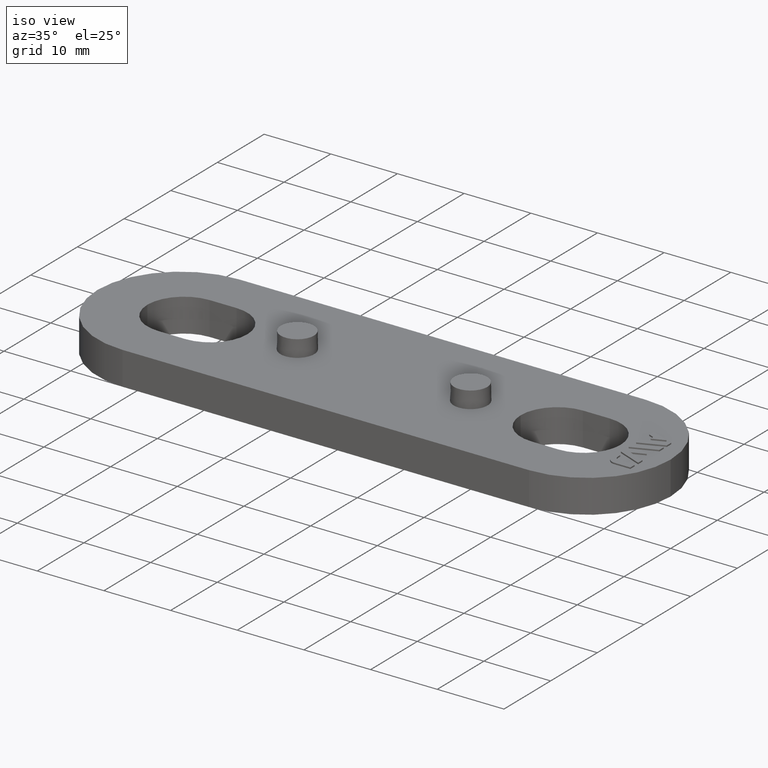
[diagram: clean part render]
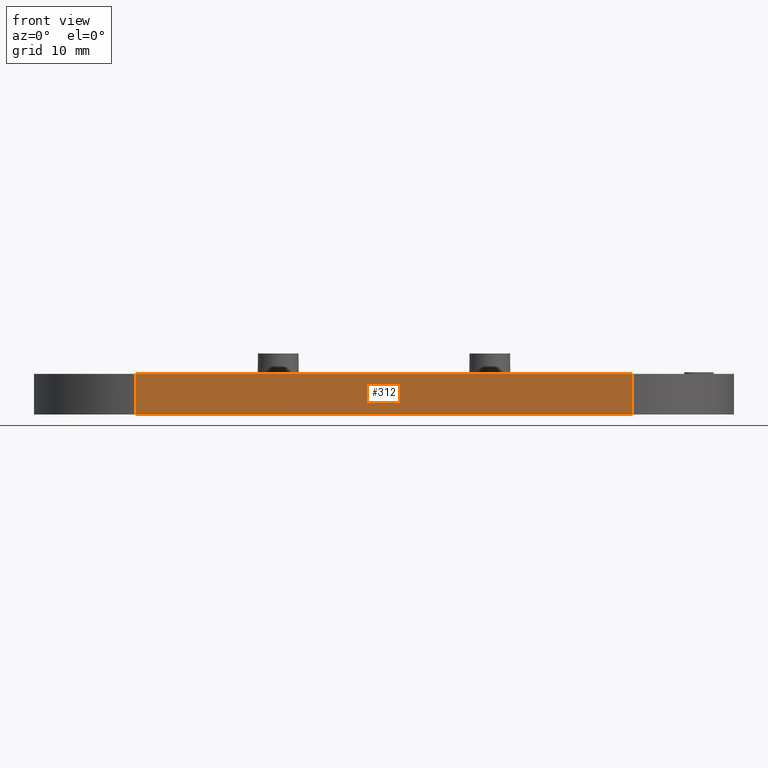
[diagram: tour spotlight — one face highlighted and labeled with its STEP entity id]
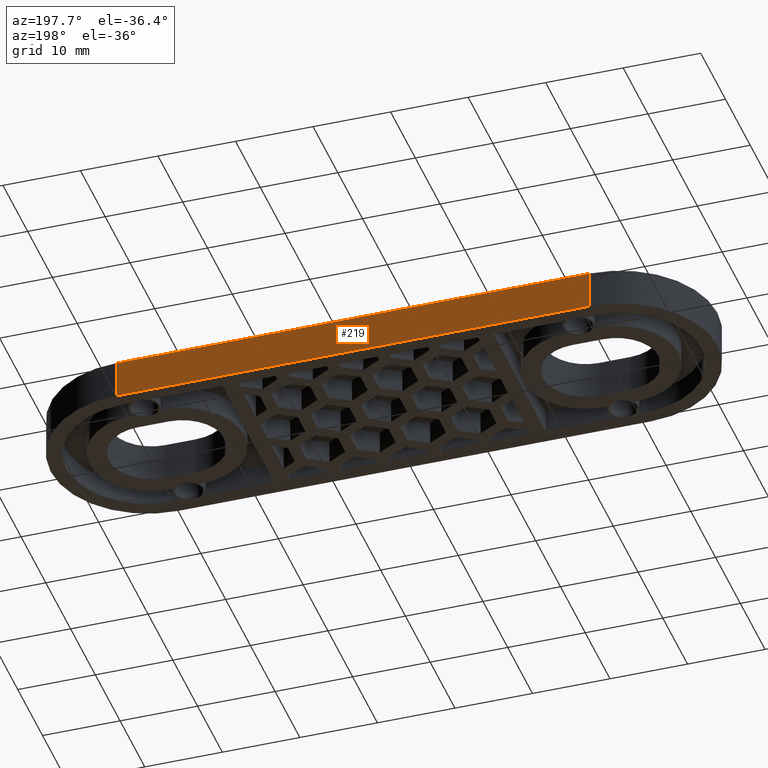
[diagram: tour spotlight — one face highlighted and labeled with its STEP entity id]
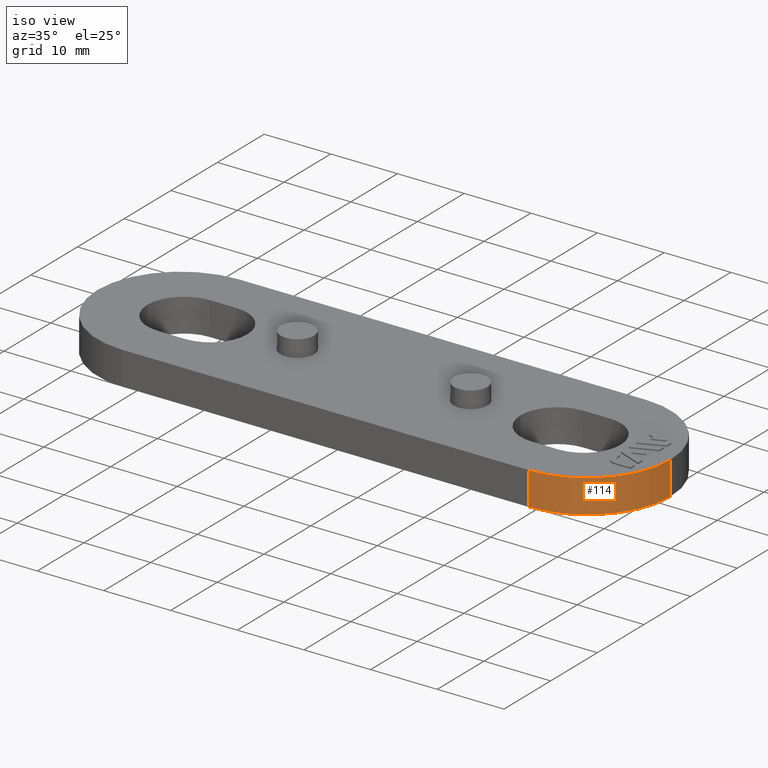
[diagram: tour spotlight — one face highlighted and labeled with its STEP entity id]
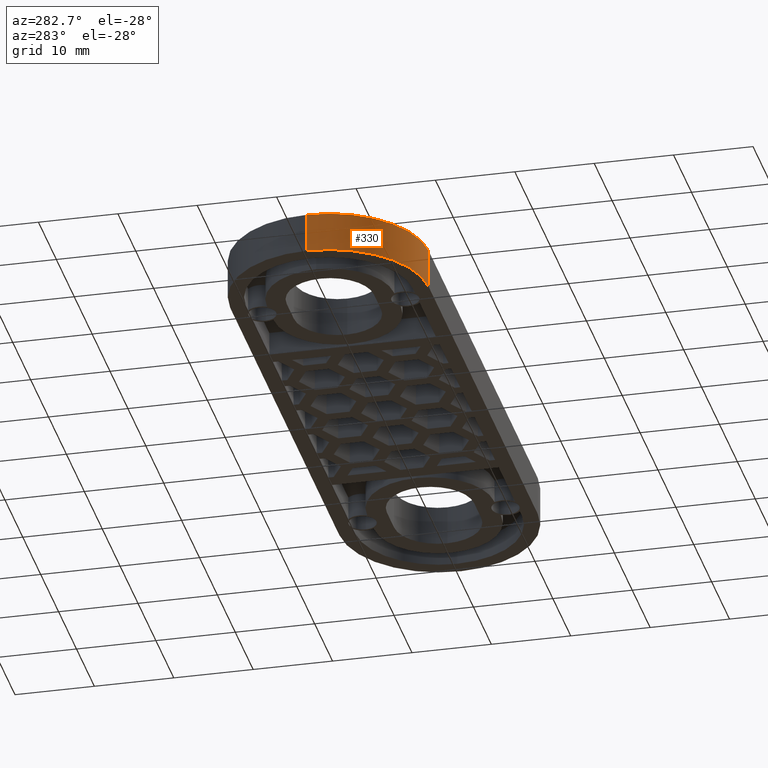
[diagram: tour spotlight — one face highlighted and labeled with its STEP entity id]
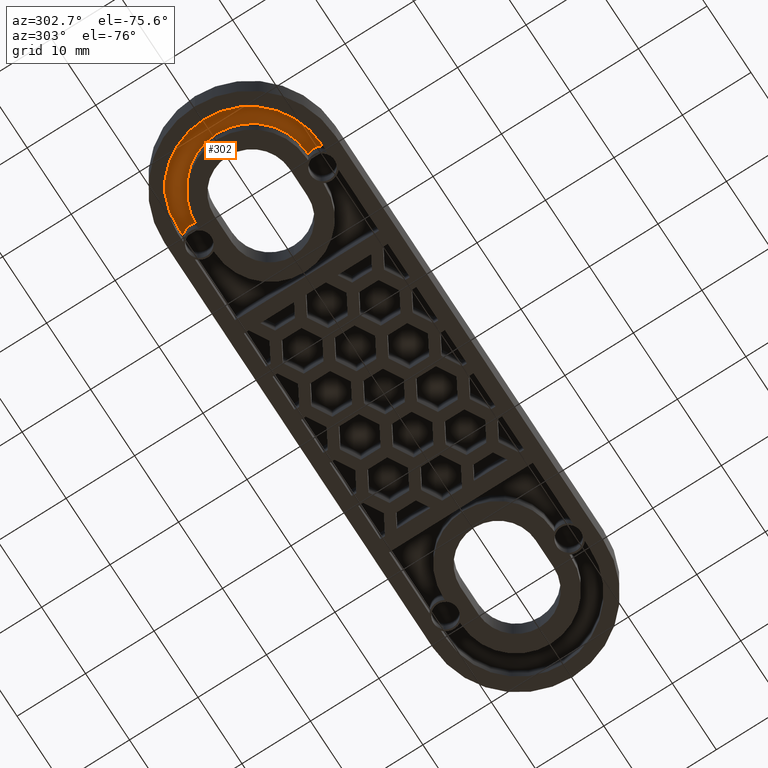
[diagram: tour spotlight — one face highlighted and labeled with its STEP entity id]
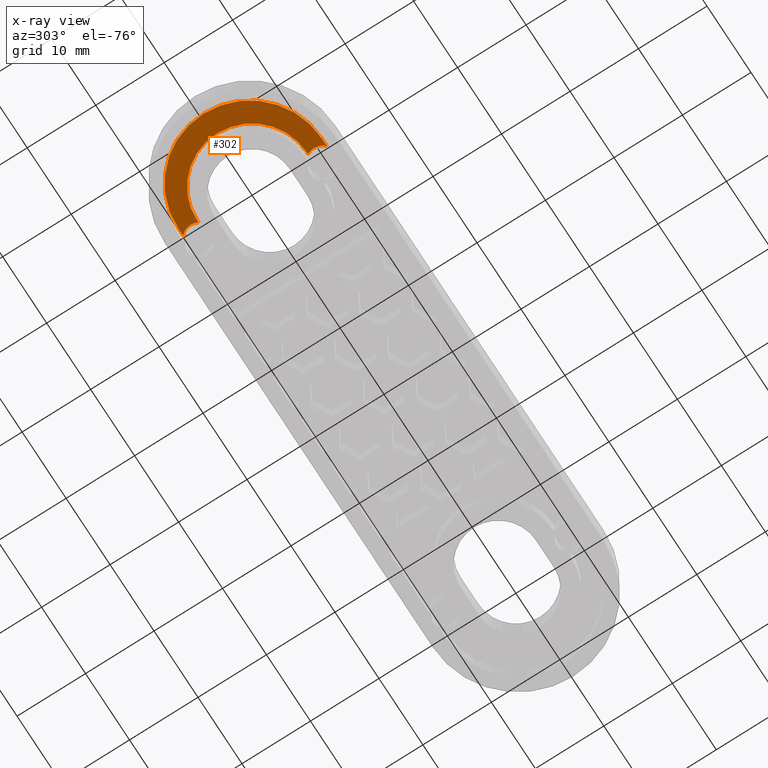
[diagram: x-ray of the same camera — body ghosted, this tour face saturated]
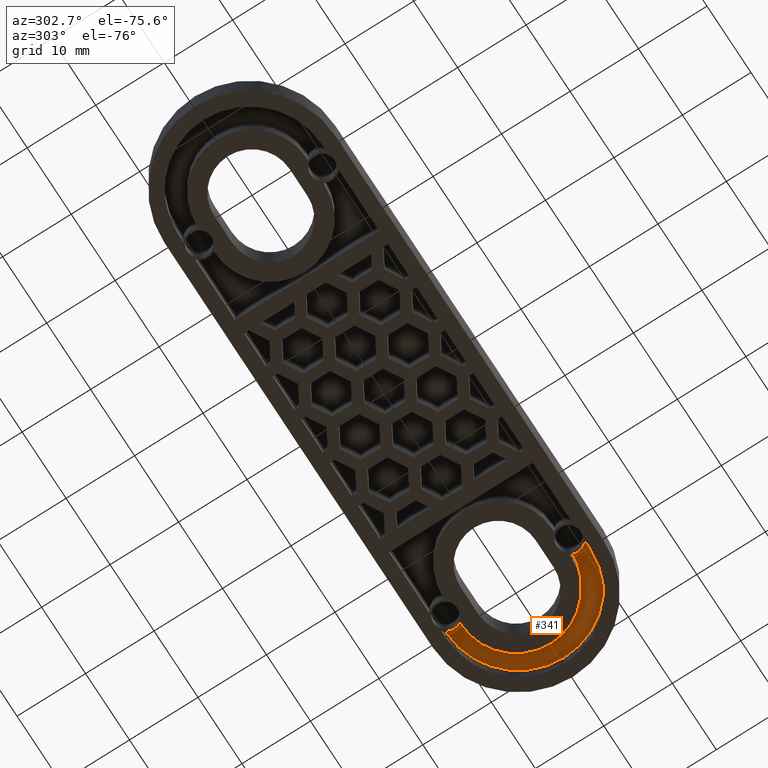
[diagram: tour spotlight — one face highlighted and labeled with its STEP entity id]
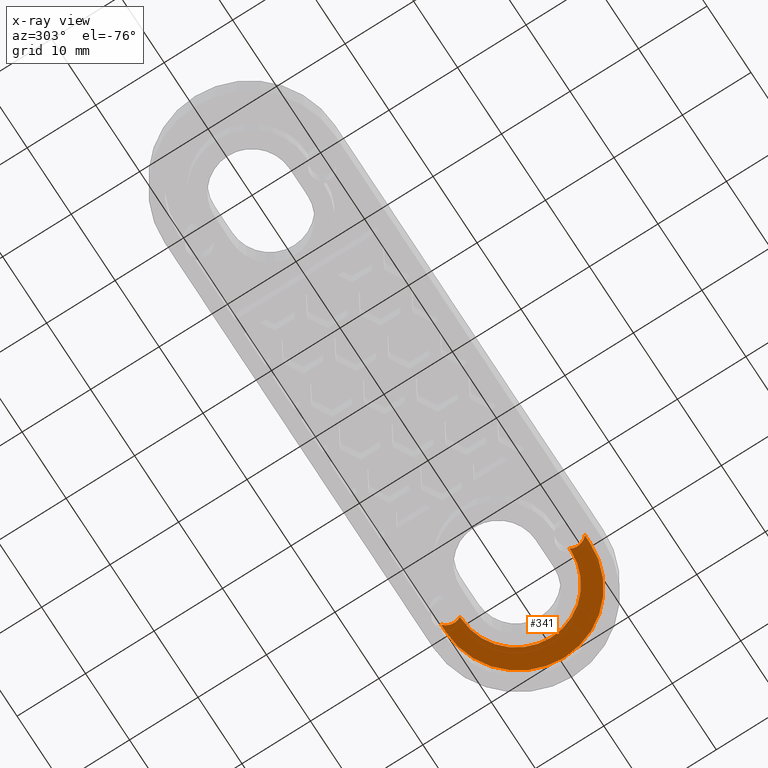
[diagram: x-ray of the same camera — body ghosted, this tour face saturated]
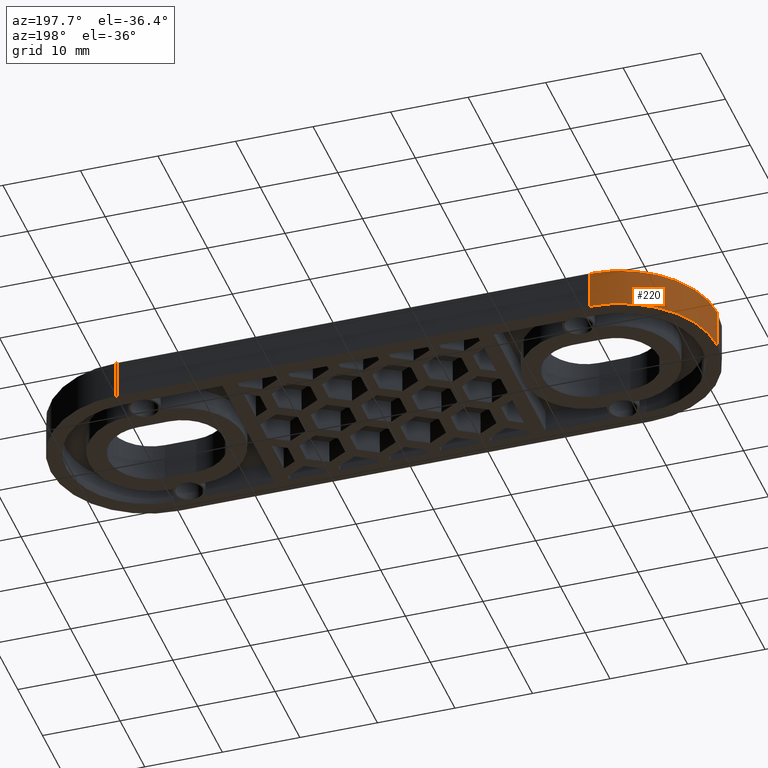
[diagram: tour spotlight — one face highlighted and labeled with its STEP entity id]
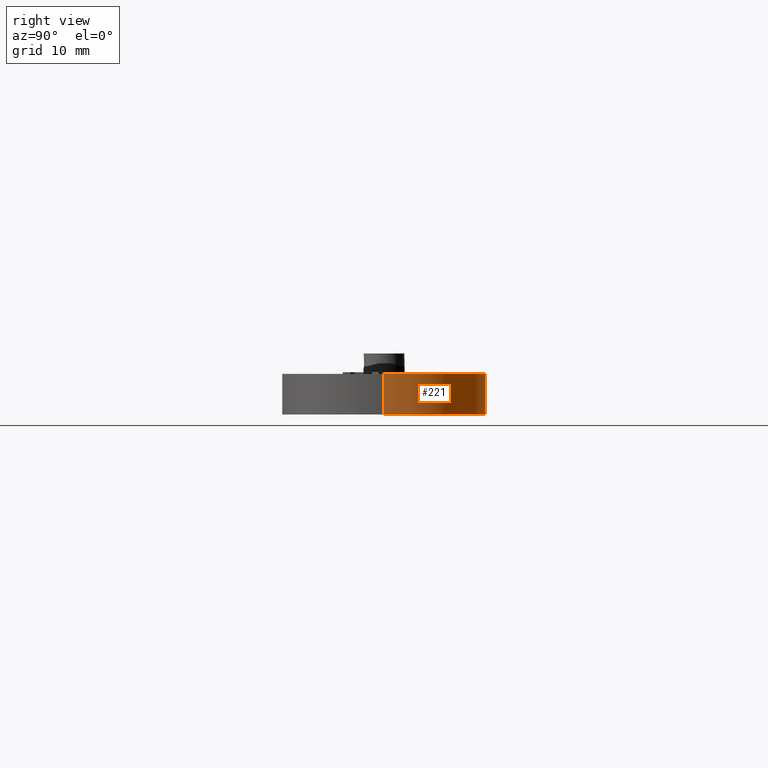
[diagram: tour spotlight — one face highlighted and labeled with its STEP entity id]
A machine part: a face-by-face anatomy tour. The part has 278 B-rep faces; the first image is the clean iso view, then the 8 largest visible faces are spotlighted one at a time (largest first), each with its STEP entity span.

Face 1 — front view, entity #312. In plain terms, the highlighted planar face has unit normal (0, 1, -0).
Definition (entity closure, byte-faithful):
#312 = ADVANCED_FACE( '', ( #879 ), #880, .F. );
#879 = FACE_OUTER_BOUND( '', #1487, .T. );
#880 = PLANE( '', #1488 );
#1487 = EDGE_LOOP( '', ( #3500, #3501, #3502, #3503 ) );
#1488 = AXIS2_PLACEMENT_3D( '', #3504, #3505, #3506 );
#3500 = ORIENTED_EDGE( '', *, *, #3801, .T. );
#3501 = ORIENTED_EDGE( '', *, *, #4482, .F. );
#3502 = ORIENTED_EDGE( '', *, *, #3859, .F. );
#3503 = ORIENTED_EDGE( '', *, *, #4120, .T. );
#3504 = CARTESIAN_POINT( '', ( 30.5000000000000, -12.5000000000000, -6.17351493276824E-015 ) );
#3505 = DIRECTION( '', ( 0.000000000000000, 1.00000000000000, -6.12303176911189E-017 ) );
#3506 = DIRECTION( '', ( 1.00000000000000, 0.000000000000000, 0.000000000000000 ) );
#3801 = EDGE_CURVE( '', #4493, #4501, #4503, .T. );
#3859 = EDGE_CURVE( '', #4614, #4616, #4617, .T. );
#4120 = EDGE_CURVE( '', #4614, #4493, #5106, .T. );
#4482 = EDGE_CURVE( '', #4616, #4501, #5644, .T. );
#4493 = VERTEX_POINT( '', #5657 );
#4501 = VERTEX_POINT( '', #5666 );
#4503 = LINE( '', #5668, #5669 );
#4614 = VERTEX_POINT( '', #5823 );
#4616 = VERTEX_POINT( '', #5825 );
#4617 = LINE( '', #5826, #5827 );
#5106 = LINE( '', #6537, #6538 );
#5644 = LINE( '', #7416, #7417 );
#5657 = CARTESIAN_POINT( '', ( 30.5000000000000, -12.5000000000000, 4.99999999999999 ) );
#5666 = CARTESIAN_POINT( '', ( -30.5000000000000, -12.5000000000000, 4.99999999999999 ) );
#5668 = CARTESIAN_POINT( '', ( 30.5000000000000, -12.5000000000000, 4.99999999999999 ) );
#5669 = VECTOR( '', #7449, 1000.00000000000 );
#5823 = CARTESIAN_POINT( '', ( 30.5000000000000, -12.5000000000000, -6.17351493276824E-015 ) );
#5825 = CARTESIAN_POINT( '', ( -30.5000000000000, -12.5000000000000, -6.17351493276824E-015 ) );
#5826 = CARTESIAN_POINT( '', ( 30.5000000000000, -12.5000000000000, -6.17351493276824E-015 ) );
#5827 = VECTOR( '', #7535, 1000.00000000000 );
#6537 = CARTESIAN_POINT( '', ( 30.5000000000000, -12.5000000000000, -6.17351493276824E-015 ) );
#6538 = VECTOR( '', #7874, 1000.00000000000 );
#7416 = CARTESIAN_POINT( '', ( -30.5000000000000, -12.5000000000000, -6.17351493276824E-015 ) );
#7417 = VECTOR( '', #8278, 1000.00000000000 );
#7449 = DIRECTION( '', ( -1.00000000000000, 0.000000000000000, 0.000000000000000 ) );
#7535 = DIRECTION( '', ( -1.00000000000000, 0.000000000000000, 0.000000000000000 ) );
#7874 = DIRECTION( '', ( 0.000000000000000, 6.12303176911189E-017, 1.00000000000000 ) );
#8278 = DIRECTION( '', ( 0.000000000000000, 6.12303176911189E-017, 1.00000000000000 ) );

Face 2 — auxiliary view, entity #219. In plain terms, the highlighted planar face has unit normal (0, -1, 0).
Definition (entity closure, byte-faithful):
#219 = ADVANCED_FACE( '', ( #690 ), #691, .F. );
#690 = FACE_OUTER_BOUND( '', #1298, .T. );
#691 = PLANE( '', #1299 );
#1298 = EDGE_LOOP( '', ( #2838, #2839, #2840, #2841 ) );
#1299 = AXIS2_PLACEMENT_3D( '', #2842, #2843, #2844 );
#2838 = ORIENTED_EDGE( '', *, *, #3798, .T. );
#2839 = ORIENTED_EDGE( '', *, *, #4363, .F. );
#2840 = ORIENTED_EDGE( '', *, *, #3862, .F. );
#2841 = ORIENTED_EDGE( '', *, *, #4364, .T. );
#2842 = CARTESIAN_POINT( '', ( -30.5000000000000, 12.5000000000000, -7.70427287504621E-015 ) );
#2843 = DIRECTION( '', ( 0.000000000000000, -1.00000000000000, 6.12303176911189E-017 ) );
#2844 = DIRECTION( '', ( -1.00000000000000, 0.000000000000000, 0.000000000000000 ) );
#3798 = EDGE_CURVE( '', #4497, #4495, #4498, .T. );
#3862 = EDGE_CURVE( '', #4620, #4622, #4623, .T. );
#4363 = EDGE_CURVE( '', #4622, #4495, #5482, .T. );
#4364 = EDGE_CURVE( '', #4620, #4497, #5483, .T. );
#4495 = VERTEX_POINT( '', #5659 );
#4497 = VERTEX_POINT( '', #5661 );
#4498 = LINE( '', #5662, #5663 );
#4620 = VERTEX_POINT( '', #5830 );
#4622 = VERTEX_POINT( '', #5832 );
#4623 = LINE( '', #5833, #5834 );
#5482 = LINE( '', #7141, #7142 );
#5483 = LINE( '', #7143, #7144 );
#5659 = CARTESIAN_POINT( '', ( 30.5000000000000, 12.5000000000000, 4.99999999999999 ) );
#5661 = CARTESIAN_POINT( '', ( -30.5000000000000, 12.5000000000000, 4.99999999999999 ) );
#5662 = CARTESIAN_POINT( '', ( -30.5000000000000, 12.5000000000000, 4.99999999999999 ) );
#5663 = VECTOR( '', #7442, 1000.00000000000 );
#5830 = CARTESIAN_POINT( '', ( -30.5000000000000, 12.5000000000000, -7.70427287504621E-015 ) );
#5832 = CARTESIAN_POINT( '', ( 30.5000000000000, 12.5000000000000, -7.70427287504621E-015 ) );
#5833 = CARTESIAN_POINT( '', ( -30.5000000000000, 12.5000000000000, -7.70427287504621E-015 ) );
#5834 = VECTOR( '', #7542, 1000.00000000000 );
#7141 = CARTESIAN_POINT( '', ( 30.5000000000000, 12.5000000000000, -7.70427287504621E-015 ) );
#7142 = VECTOR( '', #8147, 1000.00000000000 );
#7143 = CARTESIAN_POINT( '', ( -30.5000000000000, 12.5000000000000, -7.70427287504621E-015 ) );
#7144 = VECTOR( '', #8148, 1000.00000000000 );
#7442 = DIRECTION( '', ( 1.00000000000000, 0.000000000000000, 0.000000000000000 ) );
#7542 = DIRECTION( '', ( 1.00000000000000, 0.000000000000000, 0.000000000000000 ) );
#8147 = DIRECTION( '', ( 0.000000000000000, 6.12303176911189E-017, 1.00000000000000 ) );
#8148 = DIRECTION( '', ( 0.000000000000000, 6.12303176911189E-017, 1.00000000000000 ) );

Face 3 — iso view, entity #114. In plain terms, the highlighted cylindrical surface (partial cylindrical patch) has radius 12.5 mm, axis along (0, 0, 1).
Definition (entity closure, byte-faithful):
#114 = ADVANCED_FACE( '', ( #479 ), #480, .T. );
#479 = FACE_OUTER_BOUND( '', #1087, .T. );
#480 = CYLINDRICAL_SURFACE( '', #1088, 12.5000000000000 );
#1087 = EDGE_LOOP( '', ( #2089, #2090, #2091, #2092 ) );
#1088 = AXIS2_PLACEMENT_3D( '', #2093, #2094, #2095 );
#2089 = ORIENTED_EDGE( '', *, *, #3796, .T. );
#2090 = ORIENTED_EDGE( '', *, *, #4120, .F. );
#2091 = ORIENTED_EDGE( '', *, *, #3858, .F. );
#2092 = ORIENTED_EDGE( '', *, *, #4121, .T. );
#2093 = CARTESIAN_POINT( '', ( 30.5000000000000, -4.24870678161208E-031, -6.93889390390723E-015 ) );
#2094 = DIRECTION( '', ( 0.000000000000000, 6.12303176911189E-017, 1.00000000000000 ) );
#2095 = DIRECTION( '', ( 0.000000000000000, 1.00000000000000, -6.12303176911189E-017 ) );
#3796 = EDGE_CURVE( '', #4492, #4493, #4494, .T. );
#3858 = EDGE_CURVE( '', #4613, #4614, #4615, .T. );
#4120 = EDGE_CURVE( '', #4614, #4493, #5106, .T. );
#4121 = EDGE_CURVE( '', #4613, #4492, #5107, .T. );
#4492 = VERTEX_POINT( '', #5656 );
#4493 = VERTEX_POINT( '', #5657 );
#4494 = CIRCLE( '', #5658, 12.5000000000000 );
#4613 = VERTEX_POINT( '', #5822 );
#4614 = VERTEX_POINT( '', #5823 );
#4615 = CIRCLE( '', #5824, 12.5000000000000 );
#5106 = LINE( '', #6537, #6538 );
#5107 = LINE( '', #6539, #6540 );
#5656 = CARTESIAN_POINT( '', ( 43.0000000000000, 3.06151588455594E-016, 4.99999999999999 ) );
#5657 = CARTESIAN_POINT( '', ( 30.5000000000000, -12.5000000000000, 4.99999999999999 ) );
#5658 = AXIS2_PLACEMENT_3D( '', #7436, #7437, #7438 );
#5822 = CARTESIAN_POINT( '', ( 43.0000000000000, -4.24870678161208E-031, -6.93889390390723E-015 ) );
#5823 = CARTESIAN_POINT( '', ( 30.5000000000000, -12.5000000000000, -6.17351493276824E-015 ) );
#5824 = AXIS2_PLACEMENT_3D( '', #7532, #7533, #7534 );
#6537 = CARTESIAN_POINT( '', ( 30.5000000000000, -12.5000000000000, -6.17351493276824E-015 ) );
#6538 = VECTOR( '', #7874, 1000.00000000000 );
#6539 = CARTESIAN_POINT( '', ( 43.0000000000000, -4.24870678161208E-031, -6.93889390390723E-015 ) );
#6540 = VECTOR( '', #7875, 1000.00000000000 );
#7436 = CARTESIAN_POINT( '', ( 30.5000000000000, 3.06151588455594E-016, 4.99999999999999 ) );
#7437 = DIRECTION( '', ( 0.000000000000000, -6.12303176911189E-017, -1.00000000000000 ) );
#7438 = DIRECTION( '', ( 0.000000000000000, 1.00000000000000, -6.12303176911189E-017 ) );
#7532 = CARTESIAN_POINT( '', ( 30.5000000000000, -4.24870678161208E-031, -6.93889390390723E-015 ) );
#7533 = DIRECTION( '', ( 0.000000000000000, -6.12303176911189E-017, -1.00000000000000 ) );
#7534 = DIRECTION( '', ( 0.000000000000000, 1.00000000000000, -6.12303176911189E-017 ) );
#7874 = DIRECTION( '', ( 0.000000000000000, 6.12303176911189E-017, 1.00000000000000 ) );
#7875 = DIRECTION( '', ( 0.000000000000000, 6.12303176911189E-017, 1.00000000000000 ) );

Face 4 — auxiliary view, entity #330. In plain terms, the highlighted cylindrical surface (partial cylindrical patch) has radius 12.5 mm, axis along (0, 0, 1).
Definition (entity closure, byte-faithful):
#330 = ADVANCED_FACE( '', ( #916 ), #917, .T. );
#916 = FACE_OUTER_BOUND( '', #1524, .T. );
#917 = CYLINDRICAL_SURFACE( '', #1525, 12.5000000000000 );
#1524 = EDGE_LOOP( '', ( #3624, #3625, #3626, #3627 ) );
#1525 = AXIS2_PLACEMENT_3D( '', #3628, #3629, #3630 );
#3624 = ORIENTED_EDGE( '', *, *, #3800, .T. );
#3625 = ORIENTED_EDGE( '', *, *, #4365, .F. );
#3626 = ORIENTED_EDGE( '', *, *, #3860, .F. );
#3627 = ORIENTED_EDGE( '', *, *, #4482, .T. );
#3628 = CARTESIAN_POINT( '', ( -30.5000000000000, -4.24870678161208E-031, -6.93889390390723E-015 ) );
#3629 = DIRECTION( '', ( 0.000000000000000, 6.12303176911189E-017, 1.00000000000000 ) );
#3630 = DIRECTION( '', ( 0.000000000000000, 1.00000000000000, -6.12303176911189E-017 ) );
#3800 = EDGE_CURVE( '', #4501, #4499, #4502, .T. );
#3860 = EDGE_CURVE( '', #4616, #4618, #4619, .T. );
#4365 = EDGE_CURVE( '', #4618, #4499, #5484, .T. );
#4482 = EDGE_CURVE( '', #4616, #4501, #5644, .T. );
#4499 = VERTEX_POINT( '', #5664 );
#4501 = VERTEX_POINT( '', #5666 );
#4502 = CIRCLE( '', #5667, 12.5000000000000 );
#4616 = VERTEX_POINT( '', #5825 );
#4618 = VERTEX_POINT( '', #5828 );
#4619 = CIRCLE( '', #5829, 12.5000000000000 );
#5484 = LINE( '', #7145, #7146 );
#5644 = LINE( '', #7416, #7417 );
#5664 = CARTESIAN_POINT( '', ( -43.0000000000000, -1.42857188752121E-015, 4.99999999999999 ) );
#5666 = CARTESIAN_POINT( '', ( -30.5000000000000, -12.5000000000000, 4.99999999999999 ) );
#5667 = AXIS2_PLACEMENT_3D( '', #7446, #7447, #7448 );
#5825 = CARTESIAN_POINT( '', ( -30.5000000000000, -12.5000000000000, -6.17351493276824E-015 ) );
#5828 = CARTESIAN_POINT( '', ( -43.0000000000000, -1.73472347597681E-015, -6.93889390390723E-015 ) );
#5829 = AXIS2_PLACEMENT_3D( '', #7536, #7537, #7538 );
#7145 = CARTESIAN_POINT( '', ( -43.0000000000000, -1.73472347597681E-015, -6.93889390390723E-015 ) );
#7146 = VECTOR( '', #8149, 1000.00000000000 );
#7416 = CARTESIAN_POINT( '', ( -30.5000000000000, -12.5000000000000, -6.17351493276824E-015 ) );
#7417 = VECTOR( '', #8278, 1000.00000000000 );
#7446 = CARTESIAN_POINT( '', ( -30.5000000000000, 3.06151588455594E-016, 4.99999999999999 ) );
#7447 = DIRECTION( '', ( 0.000000000000000, -6.12303176911189E-017, -1.00000000000000 ) );
#7448 = DIRECTION( '', ( 0.000000000000000, 1.00000000000000, -6.12303176911189E-017 ) );
#7536 = CARTESIAN_POINT( '', ( -30.5000000000000, -4.24870678161208E-031, -6.93889390390723E-015 ) );
#7537 = DIRECTION( '', ( 0.000000000000000, -6.12303176911189E-017, -1.00000000000000 ) );
#7538 = DIRECTION( '', ( 0.000000000000000, 1.00000000000000, -6.12303176911189E-017 ) );
#8149 = DIRECTION( '', ( 0.000000000000000, 6.12303176911189E-017, 1.00000000000000 ) );
#8278 = DIRECTION( '', ( 0.000000000000000, 6.12303176911189E-017, 1.00000000000000 ) );

Face 5 — auxiliary view, entity #302. An x-ray twin of the same camera follows (body ghosted, this face saturated) — the face is partly hidden behind the body. In plain terms, the highlighted planar face has unit normal (0, -0, -1).
Definition (entity closure, byte-faithful):
#302 = ADVANCED_FACE( '', ( #859 ), #860, .T. );
#859 = FACE_OUTER_BOUND( '', #1467, .T. );
#860 = PLANE( '', #1468 );
#1467 = EDGE_LOOP( '', ( #3424, #3425, #3426, #3427, #3428, #3429, #3430, #3431, #3432, #3433 ) );
#1468 = AXIS2_PLACEMENT_3D( '', #3434, #3435, #3436 );
#3424 = ORIENTED_EDGE( '', *, *, #4444, .F. );
#3425 = ORIENTED_EDGE( '', *, *, #4226, .F. );
#3426 = ORIENTED_EDGE( '', *, *, #4231, .F. );
#3427 = ORIENTED_EDGE( '', *, *, #4469, .F. );
#3428 = ORIENTED_EDGE( '', *, *, #4470, .F. );
#3429 = ORIENTED_EDGE( '', *, *, #4442, .F. );
#3430 = ORIENTED_EDGE( '', *, *, #4471, .T. );
#3431 = ORIENTED_EDGE( '', *, *, #4472, .T. );
#3432 = ORIENTED_EDGE( '', *, *, #4357, .T. );
#3433 = ORIENTED_EDGE( '', *, *, #4473, .T. );
#3434 = CARTESIAN_POINT( '', ( 30.5000000000000, 1.83690953073356E-016, 3.00000000000000 ) );
#3435 = DIRECTION( '', ( 0.000000000000000, -6.12303176911189E-017, -1.00000000000000 ) );
#3436 = DIRECTION( '', ( 0.000000000000000, -1.00000000000000, 6.12303176911189E-017 ) );
#4226 = EDGE_CURVE( '', #5276, #5274, #5278, .T. );
#4231 = EDGE_CURVE( '', #5284, #5276, #5286, .T. );
#4357 = EDGE_CURVE( '', #5474, #5472, #5475, .T. );
#4442 = EDGE_CURVE( '', #5595, #5597, #5598, .T. );
#4444 = EDGE_CURVE( '', #5274, #5600, #5601, .T. );
#4469 = EDGE_CURVE( '', #5627, #5284, #5628, .T. );
#4470 = EDGE_CURVE( '', #5597, #5627, #5629, .T. );
#4471 = EDGE_CURVE( '', #5595, #5630, #5631, .T. );
#4472 = EDGE_CURVE( '', #5630, #5474, #5632, .T. );
#4473 = EDGE_CURVE( '', #5472, #5600, #5633, .T. );
#5274 = VERTEX_POINT( '', #6804 );
#5276 = VERTEX_POINT( '', #6807 );
#5278 = LINE( '', #6810, #6811 );
#5284 = VERTEX_POINT( '', #6819 );
#5286 = CIRCLE( '', #6822, 8.00000000000000 );
#5472 = VERTEX_POINT( '', #7125 );
#5474 = VERTEX_POINT( '', #7128 );
#5475 = CIRCLE( '', #7129, 10.5000000000000 );
#5595 = VERTEX_POINT( '', #7330 );
#5597 = VERTEX_POINT( '', #7333 );
#5598 = CIRCLE( '', #7334, 2.00000000000000 );
#5600 = VERTEX_POINT( '', #7337 );
#5601 = CIRCLE( '', #7338, 2.00000000000000 );
#5627 = VERTEX_POINT( '', #7388 );
#5628 = CIRCLE( '', #7389, 8.00000000000000 );
#5629 = LINE( '', #7390, #7391 );
#5630 = VERTEX_POINT( '', #7392 );
#5631 = LINE( '', #7393, #7394 );
#5632 = CIRCLE( '', #7395, 10.5000000000000 );
#5633 = LINE( '', #7396, #7397 );
#6804 = CARTESIAN_POINT( '', ( -29.7320508075689, 8.00000000000000, 3.00000000000000 ) );
#6807 = CARTESIAN_POINT( '', ( -30.0000000000000, 8.00000000000000, 3.00000000000000 ) );
#6810 = CARTESIAN_POINT( '', ( 30.5000000000000, 8.00000000000000, 3.00000000000000 ) );
#6811 = VECTOR( '', #7990, 1000.00000000000 );
#6819 = CARTESIAN_POINT( '', ( -38.0000000000000, -1.55103252290345E-015, 3.00000000000000 ) );
#6822 = AXIS2_PLACEMENT_3D( '', #7997, #7998, #7999 );
#7125 = CARTESIAN_POINT( '', ( -30.5000000000000, 10.5000000000000, 3.00000000000000 ) );
#7128 = CARTESIAN_POINT( '', ( -41.0000000000000, -1.55103252290345E-015, 3.00000000000000 ) );
#7129 = AXIS2_PLACEMENT_3D( '', #8139, #8140, #8141 );
#7330 = CARTESIAN_POINT( '', ( -29.3228756555323, -10.5000000000000, 3.00000000000000 ) );
#7333 = CARTESIAN_POINT( '', ( -29.7320508075689, -8.00000000000000, 3.00000000000000 ) );
#7334 = AXIS2_PLACEMENT_3D( '', #8230, #8231, #8232 );
#7337 = CARTESIAN_POINT( '', ( -29.3228756555323, 10.5000000000000, 3.00000000000000 ) );
#7338 = AXIS2_PLACEMENT_3D( '', #8234, #8235, #8236 );
#7388 = CARTESIAN_POINT( '', ( -30.0000000000000, -8.00000000000000, 3.00000000000000 ) );
#7389 = AXIS2_PLACEMENT_3D( '', #8261, #8262, #8263 );
#7390 = CARTESIAN_POINT( '', ( 30.5000000000000, -8.00000000000000, 3.00000000000000 ) );
#7391 = VECTOR( '', #8264, 1000.00000000000 );
#7392 = CARTESIAN_POINT( '', ( -30.5000000000000, -10.5000000000000, 3.00000000000000 ) );
#7393 = CARTESIAN_POINT( '', ( 30.5000000000000, -10.5000000000000, 3.00000000000000 ) );
#7394 = VECTOR( '', #8265, 1000.00000000000 );
#7395 = AXIS2_PLACEMENT_3D( '', #8266, #8267, #8268 );
#7396 = CARTESIAN_POINT( '', ( -30.5000000000000, 10.5000000000000, 3.00000000000000 ) );
#7397 = VECTOR( '', #8269, 1000.00000000000 );
#7990 = DIRECTION( '', ( 1.00000000000000, 5.78241158658936E-017, -3.54058898467673E-033 ) );
#7997 = CARTESIAN_POINT( '', ( -30.0000000000000, -3.28575599888026E-015, 3.00000000000000 ) );
#7998 = DIRECTION( '', ( 0.000000000000000, -6.12303176911189E-017, -1.00000000000000 ) );
#7999 = DIRECTION( '', ( 0.000000000000000, 1.00000000000000, -6.12303176911189E-017 ) );
#8139 = CARTESIAN_POINT( '', ( -30.5000000000000, 1.83690953073356E-016, 3.00000000000000 ) );
#8140 = DIRECTION( '', ( 0.000000000000000, -6.12303176911189E-017, -1.00000000000000 ) );
#8141 = DIRECTION( '', ( 0.000000000000000, 1.00000000000000, -6.12303176911189E-017 ) );
#8230 = CARTESIAN_POINT( '', ( -28.0000000000000, -9.00000000000001, 3.00000000000000 ) );
#8231 = DIRECTION( '', ( 7.52650542361962E-048, -6.12303176911189E-017, -1.00000000000000 ) );
#8232 = DIRECTION( '', ( 1.00000000000000, 6.12303176911189E-017, -3.74915180455534E-033 ) );
#8234 = CARTESIAN_POINT( '', ( -28.0000000000000, 9.00000000000000, 3.00000000000000 ) );
#8235 = DIRECTION( '', ( 7.52650542361962E-048, -6.12303176911189E-017, -1.00000000000000 ) );
#8236 = DIRECTION( '', ( 1.00000000000000, 6.12303176911189E-017, -3.74915180455534E-033 ) );
#8261 = CARTESIAN_POINT( '', ( -30.0000000000000, -3.28575599888026E-015, 3.00000000000000 ) );
#8262 = DIRECTION( '', ( 0.000000000000000, -6.12303176911189E-017, -1.00000000000000 ) );
#8263 = DIRECTION( '', ( 0.000000000000000, 1.00000000000000, -6.12303176911189E-017 ) );
#8264 = DIRECTION( '', ( -1.00000000000000, -5.78241158658936E-017, 3.54058898467673E-033 ) );
#8265 = DIRECTION( '', ( -1.00000000000000, 0.000000000000000, 0.000000000000000 ) );
#8266 = CARTESIAN_POINT( '', ( -30.5000000000000, 1.83690953073356E-016, 3.00000000000000 ) );
#8267 = DIRECTION( '', ( 0.000000000000000, -6.12303176911189E-017, -1.00000000000000 ) );
#8268 = DIRECTION( '', ( 0.000000000000000, 1.00000000000000, -6.12303176911189E-017 ) );
#8269 = DIRECTION( '', ( 1.00000000000000, 0.000000000000000, 0.000000000000000 ) );

Face 6 — auxiliary view, entity #341. An x-ray twin of the same camera follows (body ghosted, this face saturated) — the face is partly hidden behind the body. In plain terms, the highlighted planar face has unit normal (0, -0, -1).
Definition (entity closure, byte-faithful):
#341 = ADVANCED_FACE( '', ( #938 ), #939, .T. );
#938 = FACE_OUTER_BOUND( '', #1546, .T. );
#939 = PLANE( '', #1547 );
#1546 = EDGE_LOOP( '', ( #3703, #3704, #3705, #3706, #3707, #3708, #3709, #3710, #3711, #3712 ) );
#1547 = AXIS2_PLACEMENT_3D( '', #3713, #3714, #3715 );
#3703 = ORIENTED_EDGE( '', *, *, #4284, .F. );
#3704 = ORIENTED_EDGE( '', *, *, #4330, .F. );
#3705 = ORIENTED_EDGE( '', *, *, #4328, .F. );
#3706 = ORIENTED_EDGE( '', *, *, #4179, .F. );
#3707 = ORIENTED_EDGE( '', *, *, #4177, .F. );
#3708 = ORIENTED_EDGE( '', *, *, #4440, .F. );
#3709 = ORIENTED_EDGE( '', *, *, #4488, .T. );
#3710 = ORIENTED_EDGE( '', *, *, #4489, .T. );
#3711 = ORIENTED_EDGE( '', *, *, #4107, .T. );
#3712 = ORIENTED_EDGE( '', *, *, #4316, .T. );
#3713 = CARTESIAN_POINT( '', ( 30.5000000000000, 1.83690953073356E-016, 3.00000000000000 ) );
#3714 = DIRECTION( '', ( 0.000000000000000, -6.12303176911189E-017, -1.00000000000000 ) );
#3715 = DIRECTION( '', ( 0.000000000000000, -1.00000000000000, 6.12303176911189E-017 ) );
#4107 = EDGE_CURVE( '', #5088, #5086, #5089, .T. );
#4177 = EDGE_CURVE( '', #5196, #5198, #5199, .T. );
#4179 = EDGE_CURVE( '', #5198, #5201, #5202, .T. );
#4284 = EDGE_CURVE( '', #5367, #5368, #5369, .T. );
#4316 = EDGE_CURVE( '', #5086, #5368, #5415, .T. );
#4328 = EDGE_CURVE( '', #5201, #5432, #5433, .T. );
#4330 = EDGE_CURVE( '', #5432, #5367, #5435, .T. );
#4440 = EDGE_CURVE( '', #5592, #5196, #5594, .T. );
#4488 = EDGE_CURVE( '', #5592, #5651, #5652, .T. );
#4489 = EDGE_CURVE( '', #5651, #5088, #5653, .T. );
#5086 = VERTEX_POINT( '', #6504 );
#5088 = VERTEX_POINT( '', #6507 );
#5089 = CIRCLE( '', #6508, 10.5000000000000 );
#5196 = VERTEX_POINT( '', #6683 );
#5198 = VERTEX_POINT( '', #6686 );
#5199 = LINE( '', #6687, #6688 );
#5201 = VERTEX_POINT( '', #6691 );
#5202 = CIRCLE( '', #6692, 8.00000000000000 );
#5367 = VERTEX_POINT( '', #6955 );
#5368 = VERTEX_POINT( '', #6956 );
#5369 = CIRCLE( '', #6957, 2.00000000000000 );
#5415 = LINE( '', #7032, #7033 );
#5432 = VERTEX_POINT( '', #7061 );
#5433 = CIRCLE( '', #7062, 8.00000000000000 );
#5435 = LINE( '', #7065, #7066 );
#5592 = VERTEX_POINT( '', #7326 );
#5594 = CIRCLE( '', #7329, 1.99999999999999 );
#5651 = VERTEX_POINT( '', #7428 );
#5652 = LINE( '', #7429, #7430 );
#5653 = CIRCLE( '', #7431, 10.5000000000000 );
#6504 = CARTESIAN_POINT( '', ( 30.5000000000000, -10.5000000000000, 3.00000000000000 ) );
#6507 = CARTESIAN_POINT( '', ( 41.0000000000000, 1.83690953073356E-016, 3.00000000000000 ) );
#6508 = AXIS2_PLACEMENT_3D( '', #7859, #7860, #7861 );
#6683 = CARTESIAN_POINT( '', ( 29.7320508075689, 8.00000000000000, 3.00000000000000 ) );
#6686 = CARTESIAN_POINT( '', ( 30.0000000000000, 8.00000000000000, 3.00000000000000 ) );
#6687 = CARTESIAN_POINT( '', ( 30.5000000000000, 8.00000000000000, 3.00000000000000 ) );
#6688 = VECTOR( '', #7931, 1000.00000000000 );
#6691 = CARTESIAN_POINT( '', ( 38.0000000000000, 3.65313790502697E-015, 3.00000000000000 ) );
#6692 = AXIS2_PLACEMENT_3D( '', #7933, #7934, #7935 );
#6955 = CARTESIAN_POINT( '', ( 29.7320508075689, -7.99999999999999, 3.00000000000000 ) );
#6956 = CARTESIAN_POINT( '', ( 29.3228756555323, -10.5000000000000, 3.00000000000000 ) );
#6957 = AXIS2_PLACEMENT_3D( '', #8052, #8053, #8054 );
#7032 = CARTESIAN_POINT( '', ( 30.5000000000000, -10.5000000000000, 3.00000000000000 ) );
#7033 = VECTOR( '', #8090, 1000.00000000000 );
#7061 = CARTESIAN_POINT( '', ( 30.0000000000000, -7.99999999999999, 3.00000000000000 ) );
#7062 = AXIS2_PLACEMENT_3D( '', #8102, #8103, #8104 );
#7065 = CARTESIAN_POINT( '', ( 30.5000000000000, -7.99999999999999, 3.00000000000000 ) );
#7066 = VECTOR( '', #8106, 1000.00000000000 );
#7326 = CARTESIAN_POINT( '', ( 29.3228756555323, 10.5000000000000, 3.00000000000000 ) );
#7329 = AXIS2_PLACEMENT_3D( '', #8226, #8227, #8228 );
#7428 = CARTESIAN_POINT( '', ( 30.5000000000000, 10.5000000000000, 3.00000000000000 ) );
#7429 = CARTESIAN_POINT( '', ( -30.5000000000000, 10.5000000000000, 3.00000000000000 ) );
#7430 = VECTOR( '', #8286, 1000.00000000000 );
#7431 = AXIS2_PLACEMENT_3D( '', #8287, #8288, #8289 );
#7859 = CARTESIAN_POINT( '', ( 30.5000000000000, 1.83690953073356E-016, 3.00000000000000 ) );
#7860 = DIRECTION( '', ( 0.000000000000000, -6.12303176911189E-017, -1.00000000000000 ) );
#7861 = DIRECTION( '', ( 0.000000000000000, 1.00000000000000, -6.12303176911189E-017 ) );
#7931 = DIRECTION( '', ( 1.00000000000000, 5.78241158658936E-017, -3.54058898467673E-033 ) );
#7933 = CARTESIAN_POINT( '', ( 30.0000000000000, 1.91841442905016E-015, 3.00000000000000 ) );
#7934 = DIRECTION( '', ( 0.000000000000000, -6.12303176911189E-017, -1.00000000000000 ) );
#7935 = DIRECTION( '', ( 0.000000000000000, 1.00000000000000, -6.12303176911189E-017 ) );
#8052 = CARTESIAN_POINT( '', ( 28.0000000000000, -9.00000000000000, 3.00000000000000 ) );
#8053 = DIRECTION( '', ( 7.52650542361962E-048, -6.12303176911189E-017, -1.00000000000000 ) );
#8054 = DIRECTION( '', ( 1.00000000000000, 6.12303176911189E-017, -3.74915180455534E-033 ) );
#8090 = DIRECTION( '', ( -1.00000000000000, 0.000000000000000, 0.000000000000000 ) );
#8102 = CARTESIAN_POINT( '', ( 30.0000000000000, 3.65313790502697E-015, 3.00000000000000 ) );
#8103 = DIRECTION( '', ( 0.000000000000000, -6.12303176911189E-017, -1.00000000000000 ) );
#8104 = DIRECTION( '', ( 0.000000000000000, 1.00000000000000, -6.12303176911189E-017 ) );
#8106 = DIRECTION( '', ( -1.00000000000000, -5.78241158658936E-017, 3.54058898467673E-033 ) );
#8226 = CARTESIAN_POINT( '', ( 28.0000000000000, 9.00000000000001, 3.00000000000000 ) );
#8227 = DIRECTION( '', ( 6.84227765783609E-048, -6.12303176911189E-017, -1.00000000000000 ) );
#8228 = DIRECTION( '', ( 1.00000000000000, 6.12303176911189E-017, -3.74915180455534E-033 ) );
#8286 = DIRECTION( '', ( 1.00000000000000, 0.000000000000000, 0.000000000000000 ) );
#8287 = CARTESIAN_POINT( '', ( 30.5000000000000, 1.83690953073356E-016, 3.00000000000000 ) );
#8288 = DIRECTION( '', ( 0.000000000000000, -6.12303176911189E-017, -1.00000000000000 ) );
#8289 = DIRECTION( '', ( 0.000000000000000, 1.00000000000000, -6.12303176911189E-017 ) );

Face 7 — auxiliary view, entity #220. In plain terms, the highlighted cylindrical surface (partial cylindrical patch) has radius 12.5 mm, axis along (0, 0, 1).
Definition (entity closure, byte-faithful):
#220 = ADVANCED_FACE( '', ( #692 ), #693, .T. );
#692 = FACE_OUTER_BOUND( '', #1300, .T. );
#693 = CYLINDRICAL_SURFACE( '', #1301, 12.5000000000000 );
#1300 = EDGE_LOOP( '', ( #2845, #2846, #2847, #2848 ) );
#1301 = AXIS2_PLACEMENT_3D( '', #2849, #2850, #2851 );
#2845 = ORIENTED_EDGE( '', *, *, #3799, .T. );
#2846 = ORIENTED_EDGE( '', *, *, #4364, .F. );
#2847 = ORIENTED_EDGE( '', *, *, #3861, .F. );
#2848 = ORIENTED_EDGE( '', *, *, #4365, .T. );
#2849 = CARTESIAN_POINT( '', ( -30.5000000000000, -4.24870678161208E-031, -6.93889390390723E-015 ) );
#2850 = DIRECTION( '', ( 0.000000000000000, 6.12303176911189E-017, 1.00000000000000 ) );
#2851 = DIRECTION( '', ( 0.000000000000000, 1.00000000000000, -6.12303176911189E-017 ) );
#3799 = EDGE_CURVE( '', #4499, #4497, #4500, .T. );
#3861 = EDGE_CURVE( '', #4618, #4620, #4621, .T. );
#4364 = EDGE_CURVE( '', #4620, #4497, #5483, .T. );
#4365 = EDGE_CURVE( '', #4618, #4499, #5484, .T. );
#4497 = VERTEX_POINT( '', #5661 );
#4499 = VERTEX_POINT( '', #5664 );
#4500 = CIRCLE( '', #5665, 12.5000000000000 );
#4618 = VERTEX_POINT( '', #5828 );
#4620 = VERTEX_POINT( '', #5830 );
#4621 = CIRCLE( '', #5831, 12.5000000000000 );
#5483 = LINE( '', #7143, #7144 );
#5484 = LINE( '', #7145, #7146 );
#5661 = CARTESIAN_POINT( '', ( -30.5000000000000, 12.5000000000000, 4.99999999999999 ) );
#5664 = CARTESIAN_POINT( '', ( -43.0000000000000, -1.42857188752121E-015, 4.99999999999999 ) );
#5665 = AXIS2_PLACEMENT_3D( '', #7443, #7444, #7445 );
#5828 = CARTESIAN_POINT( '', ( -43.0000000000000, -1.73472347597681E-015, -6.93889390390723E-015 ) );
#5830 = CARTESIAN_POINT( '', ( -30.5000000000000, 12.5000000000000, -7.70427287504621E-015 ) );
#5831 = AXIS2_PLACEMENT_3D( '', #7539, #7540, #7541 );
#7143 = CARTESIAN_POINT( '', ( -30.5000000000000, 12.5000000000000, -7.70427287504621E-015 ) );
#7144 = VECTOR( '', #8148, 1000.00000000000 );
#7145 = CARTESIAN_POINT( '', ( -43.0000000000000, -1.73472347597681E-015, -6.93889390390723E-015 ) );
#7146 = VECTOR( '', #8149, 1000.00000000000 );
#7443 = CARTESIAN_POINT( '', ( -30.5000000000000, 3.06151588455594E-016, 4.99999999999999 ) );
#7444 = DIRECTION( '', ( 0.000000000000000, -6.12303176911189E-017, -1.00000000000000 ) );
#7445 = DIRECTION( '', ( 0.000000000000000, 1.00000000000000, -6.12303176911189E-017 ) );
#7539 = CARTESIAN_POINT( '', ( -30.5000000000000, -4.24870678161208E-031, -6.93889390390723E-015 ) );
#7540 = DIRECTION( '', ( 0.000000000000000, -6.12303176911189E-017, -1.00000000000000 ) );
#7541 = DIRECTION( '', ( 0.000000000000000, 1.00000000000000, -6.12303176911189E-017 ) );
#8148 = DIRECTION( '', ( 0.000000000000000, 6.12303176911189E-017, 1.00000000000000 ) );
#8149 = DIRECTION( '', ( 0.000000000000000, 6.12303176911189E-017, 1.00000000000000 ) );

Face 8 — right view, entity #221. In plain terms, the highlighted cylindrical surface (partial cylindrical patch) has radius 12.5 mm, axis along (0, 0, 1).
Definition (entity closure, byte-faithful):
#221 = ADVANCED_FACE( '', ( #694 ), #695, .T. );
#694 = FACE_OUTER_BOUND( '', #1302, .T. );
#695 = CYLINDRICAL_SURFACE( '', #1303, 12.5000000000000 );
#1302 = EDGE_LOOP( '', ( #2852, #2853, #2854, #2855 ) );
#1303 = AXIS2_PLACEMENT_3D( '', #2856, #2857, #2858 );
#2852 = ORIENTED_EDGE( '', *, *, #3797, .T. );
#2853 = ORIENTED_EDGE( '', *, *, #4121, .F. );
#2854 = ORIENTED_EDGE( '', *, *, #3863, .F. );
#2855 = ORIENTED_EDGE( '', *, *, #4363, .T. );
#2856 = CARTESIAN_POINT( '', ( 30.5000000000000, -4.24870678161208E-031, -6.93889390390723E-015 ) );
#2857 = DIRECTION( '', ( 0.000000000000000, 6.12303176911189E-017, 1.00000000000000 ) );
#2858 = DIRECTION( '', ( 0.000000000000000, 1.00000000000000, -6.12303176911189E-017 ) );
#3797 = EDGE_CURVE( '', #4495, #4492, #4496, .T. );
#3863 = EDGE_CURVE( '', #4622, #4613, #4624, .T. );
#4121 = EDGE_CURVE( '', #4613, #4492, #5107, .T. );
#4363 = EDGE_CURVE( '', #4622, #4495, #5482, .T. );
#4492 = VERTEX_POINT( '', #5656 );
#4495 = VERTEX_POINT( '', #5659 );
#4496 = CIRCLE( '', #5660, 12.5000000000000 );
#4613 = VERTEX_POINT( '', #5822 );
#4622 = VERTEX_POINT( '', #5832 );
#4624 = CIRCLE( '', #5835, 12.5000000000000 );
#5107 = LINE( '', #6539, #6540 );
#5482 = LINE( '', #7141, #7142 );
#5656 = CARTESIAN_POINT( '', ( 43.0000000000000, 3.06151588455594E-016, 4.99999999999999 ) );
#5659 = CARTESIAN_POINT( '', ( 30.5000000000000, 12.5000000000000, 4.99999999999999 ) );
#5660 = AXIS2_PLACEMENT_3D( '', #7439, #7440, #7441 );
#5822 = CARTESIAN_POINT( '', ( 43.0000000000000, -4.24870678161208E-031, -6.93889390390723E-015 ) );
#5832 = CARTESIAN_POINT( '', ( 30.5000000000000, 12.5000000000000, -7.70427287504621E-015 ) );
#5835 = AXIS2_PLACEMENT_3D( '', #7543, #7544, #7545 );
#6539 = CARTESIAN_POINT( '', ( 43.0000000000000, -4.24870678161208E-031, -6.93889390390723E-015 ) );
#6540 = VECTOR( '', #7875, 1000.00000000000 );
#7141 = CARTESIAN_POINT( '', ( 30.5000000000000, 12.5000000000000, -7.70427287504621E-015 ) );
#7142 = VECTOR( '', #8147, 1000.00000000000 );
#7439 = CARTESIAN_POINT( '', ( 30.5000000000000, 3.06151588455594E-016, 4.99999999999999 ) );
#7440 = DIRECTION( '', ( 0.000000000000000, -6.12303176911189E-017, -1.00000000000000 ) );
#7441 = DIRECTION( '', ( 0.000000000000000, 1.00000000000000, -6.12303176911189E-017 ) );
#7543 = CARTESIAN_POINT( '', ( 30.5000000000000, -4.24870678161208E-031, -6.93889390390723E-015 ) );
#7544 = DIRECTION( '', ( 0.000000000000000, -6.12303176911189E-017, -1.00000000000000 ) );
#7545 = DIRECTION( '', ( 0.000000000000000, 1.00000000000000, -6.12303176911189E-017 ) );
#7875 = DIRECTION( '', ( 0.000000000000000, 6.12303176911189E-017, 1.00000000000000 ) );
#8147 = DIRECTION( '', ( 0.000000000000000, 6.12303176911189E-017, 1.00000000000000 ) );